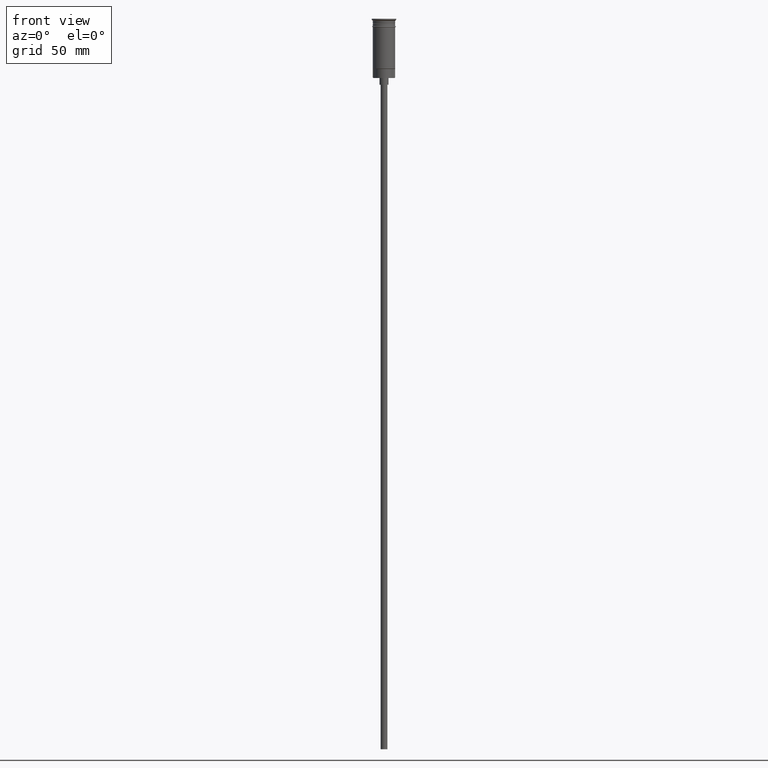
[diagram: clean part render]
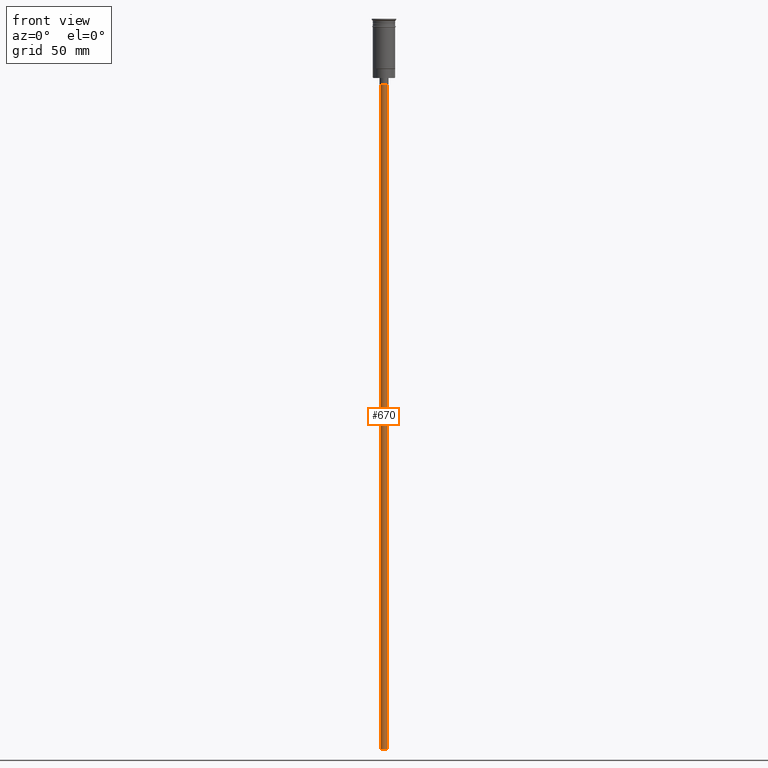
[diagram: same view with one face highlighted and labeled with its STEP entity id]
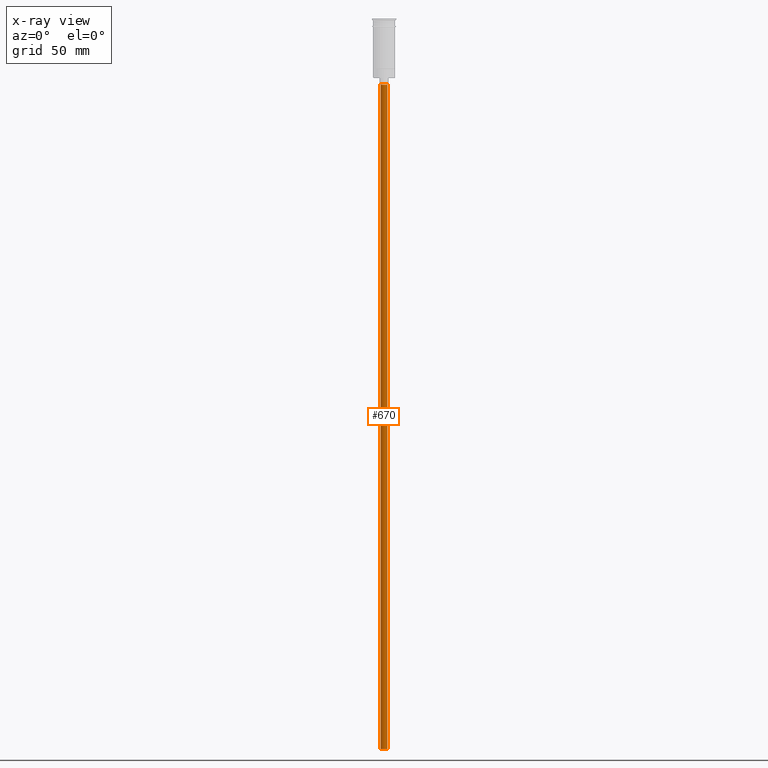
[diagram: x-ray of the same camera — body ghosted, the highlighted face saturated]
A machine part, front view. The second image highlights one B-rep face of the part: STEP entity #670.
The next image is the same camera in x-ray: the body ghosted, the highlighted face saturated — about 0% of this face is hidden behind the body in this view.
In plain terms, the highlighted cylindrical surface (edge-blend (fillet) strip) has radius 1.5 mm, axis along (-0, -0, 1).
Its self-contained STEP definition (entity closure, byte-faithful):
#5 = EDGE_CURVE ( 'NONE', #294, #153, #986, .T. ) ;
#64 = FACE_OUTER_BOUND ( 'NONE', #858, .T. ) ;
#76 = DIRECTION ( 'NONE',  ( -0.000000000000000000, -0.000000000000000000, 1.000000000000000000 ) ) ;
#153 = VERTEX_POINT ( 'NONE', #1249 ) ;
#166 = AXIS2_PLACEMENT_3D ( 'NONE', #910, #697, #1037 ) ;
#239 = CARTESIAN_POINT ( 'NONE',  ( 0.000000000000000000, 0.000000000000000000, -29.50000000000000000 ) ) ;
#294 = VERTEX_POINT ( 'NONE', #432 ) ;
#300 = ORIENTED_EDGE ( 'NONE', *, *, #771, .F. ) ;
#395 = ORIENTED_EDGE ( 'NONE', *, *, #863, .F. ) ;
#422 = VECTOR ( 'NONE', #76, 1000.000000000000000 ) ;
#432 = CARTESIAN_POINT ( 'NONE',  ( 1.500000000000000222, 0.000000000000000000, -29.50000000000000000 ) ) ;
#437 = EDGE_CURVE ( 'NONE', #581, #294, #1589, .T. ) ;
#528 = ORIENTED_EDGE ( 'NONE', *, *, #437, .T. ) ;
#581 = VERTEX_POINT ( 'NONE', #895 ) ;
#586 = VERTEX_POINT ( 'NONE', #1137 ) ;
#595 = DIRECTION ( 'NONE',  ( 0.000000000000000000, 0.000000000000000000, -1.000000000000000000 ) ) ;
#670 = ADVANCED_FACE ( 'NONE', ( #64 ), #1057, .T. ) ;
#674 = ORIENTED_EDGE ( 'NONE', *, *, #5, .T. ) ;
#697 = DIRECTION ( 'NONE',  ( -0.000000000000000000, -0.000000000000000000, 1.000000000000000000 ) ) ;
#771 = EDGE_CURVE ( 'NONE', #586, #153, #1551, .T. ) ;
#782 = AXIS2_PLACEMENT_3D ( 'NONE', #1221, #1214, #1484 ) ;
#858 = EDGE_LOOP ( 'NONE', ( #300, #395, #528, #674 ) ) ;
#863 = EDGE_CURVE ( 'NONE', #581, #586, #864, .T. ) ;
#864 = CIRCLE ( 'NONE', #782, 1.500000000000000222 ) ;
#895 = CARTESIAN_POINT ( 'NONE',  ( 1.500000000000000222, 0.000000000000000000, -326.5000000000000000 ) ) ;
#910 = CARTESIAN_POINT ( 'NONE',  ( 0.000000000000000000, 0.000000000000000000, -326.5000000000000000 ) ) ;
#986 = CIRCLE ( 'NONE', #1462, 1.500000000000000222 ) ;
#1037 = DIRECTION ( 'NONE',  ( 1.000000000000000000, 0.000000000000000000, 0.000000000000000000 ) ) ;
#1057 = CYLINDRICAL_SURFACE ( 'NONE', #166, 1.500000000000000222 ) ;
#1077 = CARTESIAN_POINT ( 'NONE',  ( 1.500000000000000222, 0.000000000000000000, -326.5000000000000000 ) ) ;
#1137 = CARTESIAN_POINT ( 'NONE',  ( -1.500000000000000222, 1.836970198721030181E-16, -326.5000000000000000 ) ) ;
#1170 = CARTESIAN_POINT ( 'NONE',  ( -1.500000000000000222, 1.836970198721030181E-16, -326.5000000000000000 ) ) ;
#1194 = VECTOR ( 'NONE', #1324, 1000.000000000000000 ) ;
#1214 = DIRECTION ( 'NONE',  ( 0.000000000000000000, 0.000000000000000000, -1.000000000000000000 ) ) ;
#1221 = CARTESIAN_POINT ( 'NONE',  ( 0.000000000000000000, 0.000000000000000000, -326.5000000000000000 ) ) ;
#1249 = CARTESIAN_POINT ( 'NONE',  ( -1.500000000000000222, 1.836970198721030181E-16, -29.50000000000000000 ) ) ;
#1324 = DIRECTION ( 'NONE',  ( -0.000000000000000000, -0.000000000000000000, 1.000000000000000000 ) ) ;
#1462 = AXIS2_PLACEMENT_3D ( 'NONE', #239, #595, #1482 ) ;
#1482 = DIRECTION ( 'NONE',  ( -1.000000000000000000, 0.000000000000000000, 0.000000000000000000 ) ) ;
#1484 = DIRECTION ( 'NONE',  ( -1.000000000000000000, 0.000000000000000000, 0.000000000000000000 ) ) ;
#1551 = LINE ( 'NONE', #1170, #422 ) ;
#1589 = LINE ( 'NONE', #1077, #1194 ) ;